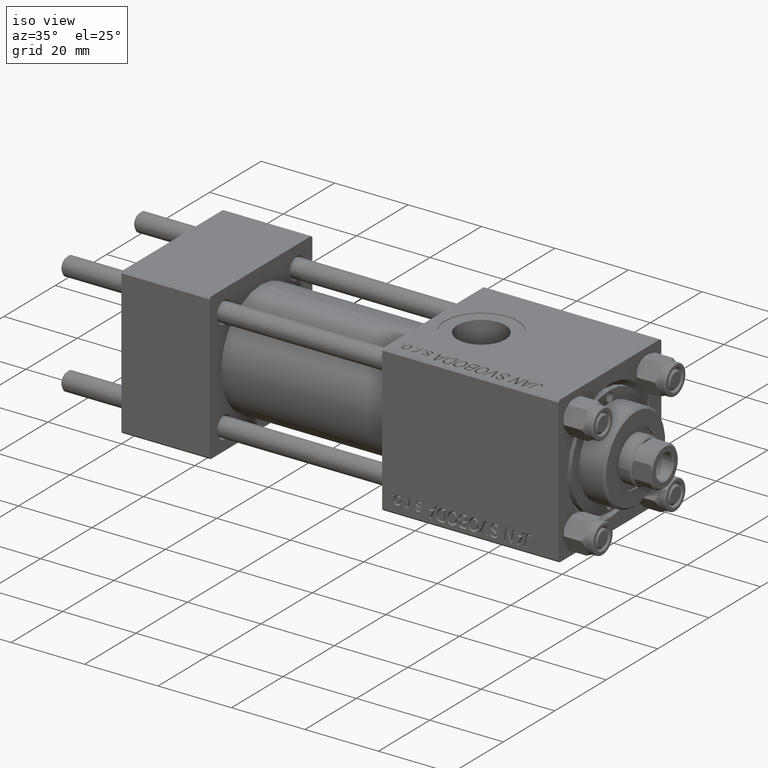
[diagram: clean part render]
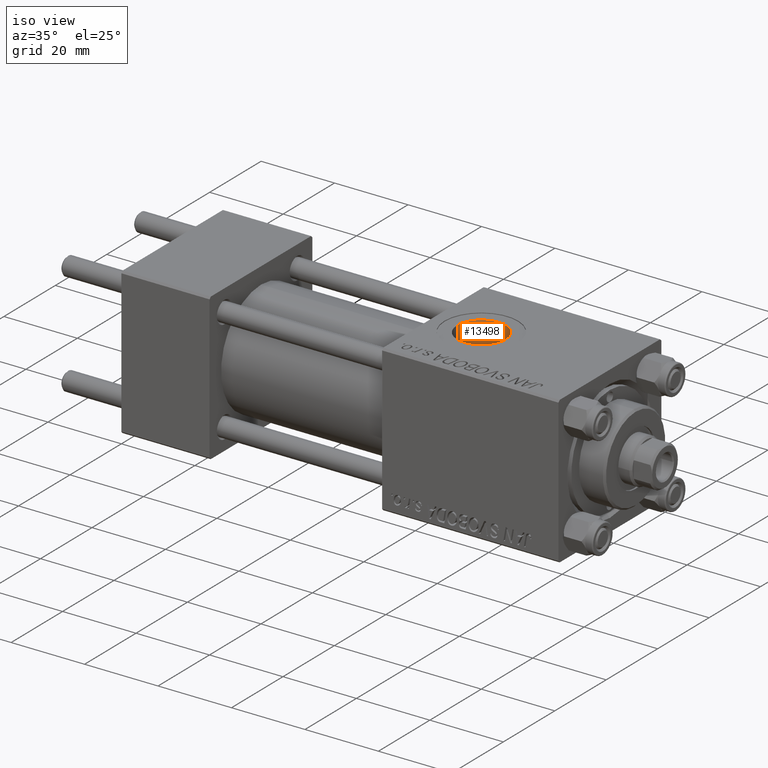
[diagram: same view with one face highlighted and labeled with its STEP entity id]
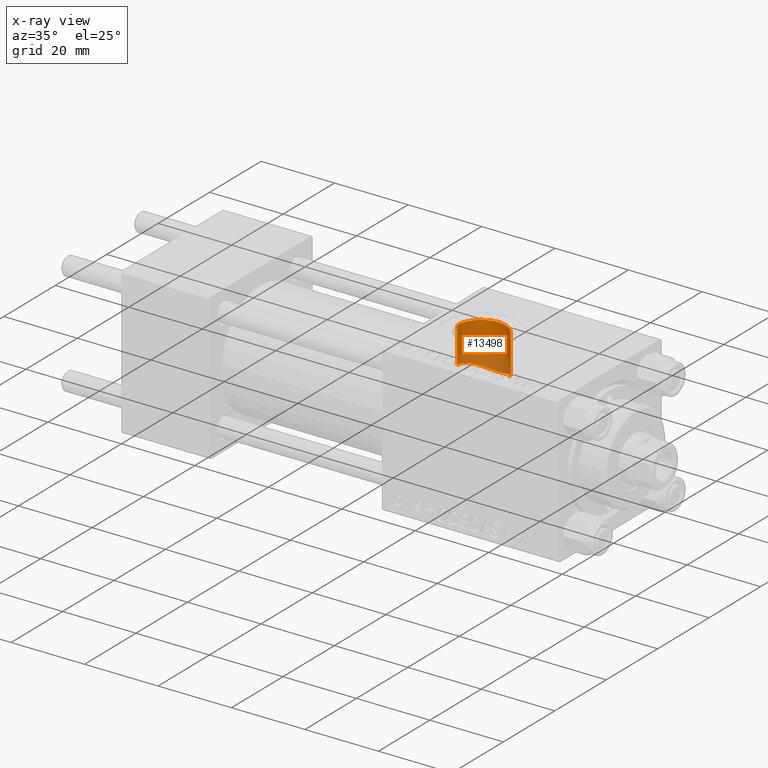
[diagram: x-ray of the same camera — body ghosted, the highlighted face saturated]
A machine part, iso view. The second image highlights one B-rep face of the part: STEP entity #13498.
The next image is the same camera in x-ray: the body ghosted, the highlighted face saturated — about 33% of this face is hidden behind the body in this view.
In plain terms, the highlighted cylindrical surface (edge-blend (fillet) strip) has radius 6.58 mm, axis along (0, 0, -1).
Its self-contained STEP definition (entity closure, byte-faithful):
#245 = CARTESIAN_POINT ( 'NONE',  ( 77.42000000000160753, 1.225496637846663454E-15, 9.999999999999998224 ) ) ;
#858 = VERTEX_POINT ( 'NONE', #21992 ) ;
#1319 = ORIENTED_EDGE ( 'NONE', *, *, #37591, .T. ) ;
#1991 = B_SPLINE_CURVE_WITH_KNOTS ( 'NONE', 3,
 ( #245, #46456, #11866, #23218, #34087, #49977, #11368, #49738, #42421, #23472, #15400, #7819, #19188, #4297, #22973, #11127, #30292, #30782, #11620, #19703, #26754, #41921, #27251, #38369, #49506, #3793, #22729, #41677, #14919, #42174, #37874, #35080, #38127, #14671, #3553, #18944, #45476, #34326, #15159, #26268 ),
 .UNSPECIFIED., .F., .F.,
 ( 4, 2, 2, 2, 2, 2, 2, 2, 2, 2, 2, 2, 2, 2, 2, 2, 2, 2, 2, 4 ),
 ( 0.01932465968158540368, 0.01992623976257815177, 0.02052781984357089987, 0.02112939992456364796, 0.02173098000555639606, 0.02293414016754189225, 0.02353572024853465075, 0.02413730032952740925, 0.02534046049151290197, 0.02654362065349839470, 0.02774678081548388742, 0.02894994097746937667, 0.03015310113945487286, 0.03135626130144036905, 0.03255942146342585830, 0.03376258162541135449, 0.03496574178739684374, 0.03616890194938233993, 0.03737206211136782918, 0.03857522227335331844 ),
 .UNSPECIFIED. ) ;
#3533 = EDGE_CURVE ( 'NONE', #44211, #858, #33121, .T. ) ;
#3553 = CARTESIAN_POINT ( 'NONE',  ( 89.01137633077190969, 4.281013922255382909, 9.043334261708915633 ) ) ;
#3793 = CARTESIAN_POINT ( 'NONE',  ( 84.64208553656969514, 6.561020993391605494, 7.546746410830169616 ) ) ;
#4297 = CARTESIAN_POINT ( 'NONE',  ( 78.80526461954180206, 4.043265572016103704, 9.147692279144623129 ) ) ;
#4305 = CARTESIAN_POINT ( 'NONE',  ( 90.30000000000001137, 1.899052395280422134, 14.87930105885285492 ) ) ;
#4327 = DIRECTION ( 'NONE',  ( 0.000000000000000000, 0.000000000000000000, -1.000000000000000000 ) ) ;
#4571 = CARTESIAN_POINT ( 'NONE',  ( 90.58000000000161833, -9.289058821378484469E-16, 42.80000000000000426 ) ) ;
#5819 = VECTOR ( 'NONE', #19042, 1000.000000000000000 ) ;
#6219 = VECTOR ( 'NONE', #4327, 1000.000000000000000 ) ;
#6323 = DIRECTION ( 'NONE',  ( -0.000000000000000000, -0.000000000000000000, -1.000000000000000000 ) ) ;
#7819 = CARTESIAN_POINT ( 'NONE',  ( 78.47036046458772773, 3.571696826446925765, 9.342058825423540824 ) ) ;
#8613 = ORIENTED_EDGE ( 'NONE', *, *, #25847, .F. ) ;
#11127 = CARTESIAN_POINT ( 'NONE',  ( 79.29945075164202706, 4.620086428004238854, 8.874409408839014191 ) ) ;
#11227 = LINE ( 'NONE', #11722, #5819 ) ;
#11361 = AXIS2_PLACEMENT_3D ( 'NONE', #21722, #6323, #14647 ) ;
#11368 = CARTESIAN_POINT ( 'NONE',  ( 77.61336014068592704, 1.596001079244919518, 9.873755022540402493 ) ) ;
#11543 = AXIS2_PLACEMENT_3D ( 'NONE', #34028, #19379, #30479 ) ;
#11620 = CARTESIAN_POINT ( 'NONE',  ( 80.48063172447416491, 5.572696846751423294, 8.306367771683779822 ) ) ;
#11722 = CARTESIAN_POINT ( 'NONE',  ( 77.42000000000160753, -1.734723475976807094E-15, 42.80000000000000426 ) ) ;
#11866 = CARTESIAN_POINT ( 'NONE',  ( 77.42954415386401479, 0.4077000747564925587, 9.993712614140441985 ) ) ;
#12164 = ORIENTED_EDGE ( 'NONE', *, *, #3533, .F. ) ;
#13063 = CARTESIAN_POINT ( 'NONE',  ( 90.58000000000161833, 1.836897620916020515E-15, 15.00000000000000000 ) ) ;
#13498 = ADVANCED_FACE ( 'NONE', ( #18636 ), #46151, .F. ) ;
#14647 = DIRECTION ( 'NONE',  ( 1.000000000000000000, 0.000000000000000000, 0.000000000000000000 ) ) ;
#14671 = CARTESIAN_POINT ( 'NONE',  ( 88.75576429004979673, 4.563405353889045557, 8.902983152274705603 ) ) ;
#14919 = CARTESIAN_POINT ( 'NONE',  ( 86.19913985023997327, 6.213801701238716113, 7.837395548023343927 ) ) ;
#15002 = B_SPLINE_CURVE_WITH_KNOTS ( 'NONE', 3,
 ( #33545, #15121, #42134, #41879 ),
 .UNSPECIFIED., .F., .F.,
 ( 4, 4 ),
 ( 0.000000000000000000, 0.001923267627926032990 ),
 .UNSPECIFIED. ) ;
#15121 = CARTESIAN_POINT ( 'NONE',  ( 90.48627106246557616, 1.281108574220380492, 14.95816952780117148 ) ) ;
#15159 = CARTESIAN_POINT ( 'NONE',  ( 90.18394818542554958, 2.284047792793393317, 9.743556464968655462 ) ) ;
#15400 = CARTESIAN_POINT ( 'NONE',  ( 78.16952377845562694, 3.074422462291082958, 9.522197844734161976 ) ) ;
#15980 = VERTEX_POINT ( 'NONE', #13063 ) ;
#18636 = FACE_OUTER_BOUND ( 'NONE', #33644, .T. ) ;
#18944 = CARTESIAN_POINT ( 'NONE',  ( 89.47113332388803997, 3.675278640240594807, 9.305982037814921171 ) ) ;
#19000 = ORIENTED_EDGE ( 'NONE', *, *, #42145, .T. ) ;
#19042 = DIRECTION ( 'NONE',  ( 0.000000000000000000, 0.000000000000000000, -1.000000000000000000 ) ) ;
#19188 = CARTESIAN_POINT ( 'NONE',  ( 78.57832010883639384, 3.733451394699830672, 9.278448749828111630 ) ) ;
#19379 = DIRECTION ( 'NONE',  ( 0.000000000000000000, 0.000000000000000000, -1.000000000000000000 ) ) ;
#19703 = CARTESIAN_POINT ( 'NONE',  ( 81.14578869087019086, 5.940907422894976087, 8.047130836319954739 ) ) ;
#21722 = CARTESIAN_POINT ( 'NONE',  ( 84.00000000000162004, -1.734723475976807094E-15, 19.80000000000000071 ) ) ;
#21992 = CARTESIAN_POINT ( 'NONE',  ( 90.58000000000161833, -9.289058821378484469E-16, 19.80000000000000071 ) ) ;
#22717 = VERTEX_POINT ( 'NONE', #27955 ) ;
#22729 = CARTESIAN_POINT ( 'NONE',  ( 85.04005595195440037, 6.509727955660051357, 7.591870904139617515 ) ) ;
#22973 = CARTESIAN_POINT ( 'NONE',  ( 78.92452899478662687, 4.191895100648730832, 9.080368974036076679 ) ) ;
#23141 = VECTOR ( 'NONE', #36865, 1000.000000000000000 ) ;
#23218 = CARTESIAN_POINT ( 'NONE',  ( 77.46686778346209223, 0.8095015862945702523, 9.969213526992634300 ) ) ;
#23472 = CARTESIAN_POINT ( 'NONE',  ( 77.99778063450611398, 2.725070813950337012, 9.629029610002154627 ) ) ;
#25847 = EDGE_CURVE ( 'NONE', #858, #15980, #47493, .T. ) ;
#26068 = EDGE_CURVE ( 'NONE', #30591, #45588, #40660, .T. ) ;
#26268 = CARTESIAN_POINT ( 'NONE',  ( 90.30000000000001137, 1.899052395280422134, 9.818024241158690657 ) ) ;
#26754 = CARTESIAN_POINT ( 'NONE',  ( 81.49663029925335422, 6.097981844535524942, 7.927249195842431817 ) ) ;
#26810 = ORIENTED_EDGE ( 'NONE', *, *, #26068, .F. ) ;
#27251 = CARTESIAN_POINT ( 'NONE',  ( 82.63059524258974875, 6.448383834520002189, 7.643587924519930077 ) ) ;
#27850 = CARTESIAN_POINT ( 'NONE',  ( 90.30000000000001137, 1.899052395280422134, 9.818024241158690657 ) ) ;
#27955 = CARTESIAN_POINT ( 'NONE',  ( 77.42000000000160753, 1.225496637846663454E-15, 9.999999999999998224 ) ) ;
#30292 = CARTESIAN_POINT ( 'NONE',  ( 79.57202415259673955, 4.882110597332318669, 8.731710965080228704 ) ) ;
#30479 = DIRECTION ( 'NONE',  ( -1.000000000000000000, 0.000000000000000000, 0.000000000000000000 ) ) ;
#30591 = VERTEX_POINT ( 'NONE', #4305 ) ;
#30782 = CARTESIAN_POINT ( 'NONE',  ( 80.16598197494553801, 5.361182684196731607, 8.446034601453865420 ) ) ;
#32311 = CARTESIAN_POINT ( 'NONE',  ( 90.30000000000001137, 1.899052395280422134, 42.80000000000000426 ) ) ;
#33121 = CIRCLE ( 'NONE', #11361, 6.580000000000002736 ) ;
#33545 = CARTESIAN_POINT ( 'NONE',  ( 90.30000000000001137, 1.899052395280422134, 14.87930105885285492 ) ) ;
#33644 = EDGE_LOOP ( 'NONE', ( #8613, #12164, #1319, #41672, #26810, #19000 ) ) ;
#34028 = CARTESIAN_POINT ( 'NONE',  ( 84.00000000000162004, -1.734723475976807094E-15, 42.80000000000000426 ) ) ;
#34087 = CARTESIAN_POINT ( 'NONE',  ( 77.49462714227192350, 1.008229431408490306, 9.951015238921771200 ) ) ;
#34326 = CARTESIAN_POINT ( 'NONE',  ( 90.03413885016287566, 2.653169395164088673, 9.648548488114606414 ) ) ;
#35080 = CARTESIAN_POINT ( 'NONE',  ( 87.89770756635059001, 5.314995828700215696, 8.474223888702248075 ) ) ;
#36865 = DIRECTION ( 'NONE',  ( 0.000000000000000000, 0.000000000000000000, -1.000000000000000000 ) ) ;
#37591 = EDGE_CURVE ( 'NONE', #44211, #22717, #11227, .T. ) ;
#37874 = CARTESIAN_POINT ( 'NONE',  ( 87.25879362717273580, 5.729011173613096197, 8.200005008996571476 ) ) ;
#38127 = CARTESIAN_POINT ( 'NONE',  ( 88.19646942446794924, 5.082480376343814221, 8.617202020242446636 ) ) ;
#38369 = CARTESIAN_POINT ( 'NONE',  ( 83.42309077254368788, 6.566894182960086646, 7.542015064090679566 ) ) ;
#40660 = LINE ( 'NONE', #32311, #23141 ) ;
#41672 = ORIENTED_EDGE ( 'NONE', *, *, #47951, .T. ) ;
#41677 = CARTESIAN_POINT ( 'NONE',  ( 85.82542148765949719, 6.334517411160158318, 7.738665973508126683 ) ) ;
#41879 = CARTESIAN_POINT ( 'NONE',  ( 90.58000000000161833, 1.836897620916020515E-15, 15.00000000000000000 ) ) ;
#41921 = CARTESIAN_POINT ( 'NONE',  ( 82.24366288463322405, 6.353544079652605703, 7.723932937123460185 ) ) ;
#42134 = CARTESIAN_POINT ( 'NONE',  ( 90.58000000000161833, 0.6482402319151217007, 15.00000000000000000 ) ) ;
#42145 = EDGE_CURVE ( 'NONE', #30591, #15980, #15002, .T. ) ;
#42174 = CARTESIAN_POINT ( 'NONE',  ( 86.91556528692474615, 5.911601028563445936, 8.067779981976508807 ) ) ;
#42421 = CARTESIAN_POINT ( 'NONE',  ( 77.78548192684372964, 2.171457386534927370, 9.763238620524358424 ) ) ;
#44211 = VERTEX_POINT ( 'NONE', #47670 ) ;
#45476 = CARTESIAN_POINT ( 'NONE',  ( 89.67635654325880523, 3.350987301718959088, 9.428927821902775008 ) ) ;
#45588 = VERTEX_POINT ( 'NONE', #27850 ) ;
#46151 = CYLINDRICAL_SURFACE ( 'NONE', #11543, 6.580000000000002736 ) ;
#46456 = CARTESIAN_POINT ( 'NONE',  ( 77.42000000000157911, 0.2033100982330299789, 10.00000000000000533 ) ) ;
#47493 = LINE ( 'NONE', #4571, #6219 ) ;
#47670 = CARTESIAN_POINT ( 'NONE',  ( 77.42000000000160753, -1.734723475976807094E-15, 19.80000000000000071 ) ) ;
#47951 = EDGE_CURVE ( 'NONE', #22717, #45588, #1991, .T. ) ;
#49506 = CARTESIAN_POINT ( 'NONE',  ( 83.83547327919588099, 6.590311166412116783, 7.521181861580480188 ) ) ;
#49738 = CARTESIAN_POINT ( 'NONE',  ( 77.72206397560513835, 1.980885511869858506, 9.803792647692874951 ) ) ;
#49977 = CARTESIAN_POINT ( 'NONE',  ( 77.56787295357713674, 1.401479312404788846, 9.903286656888862893 ) ) ;